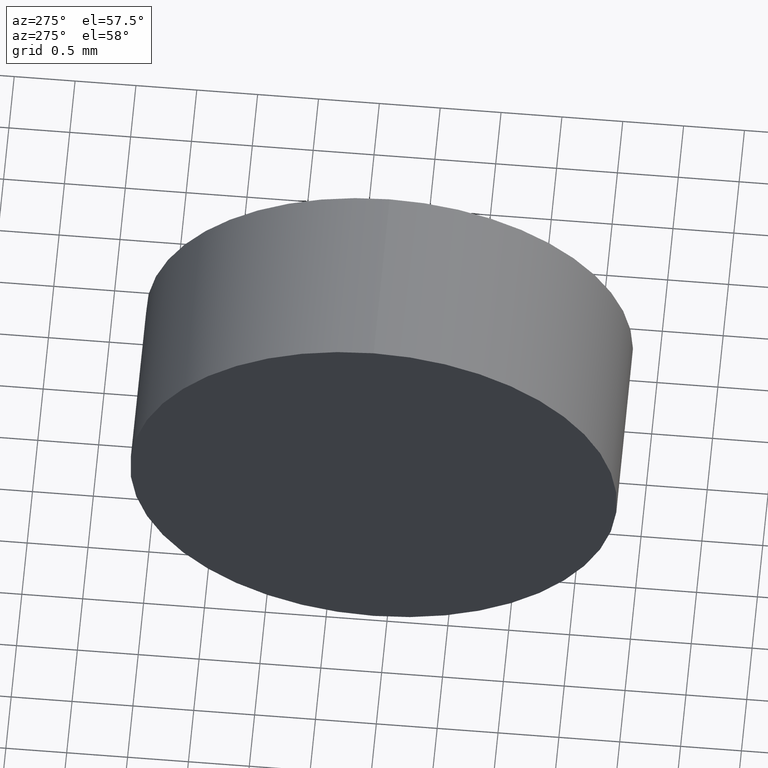
[diagram: clean part render]
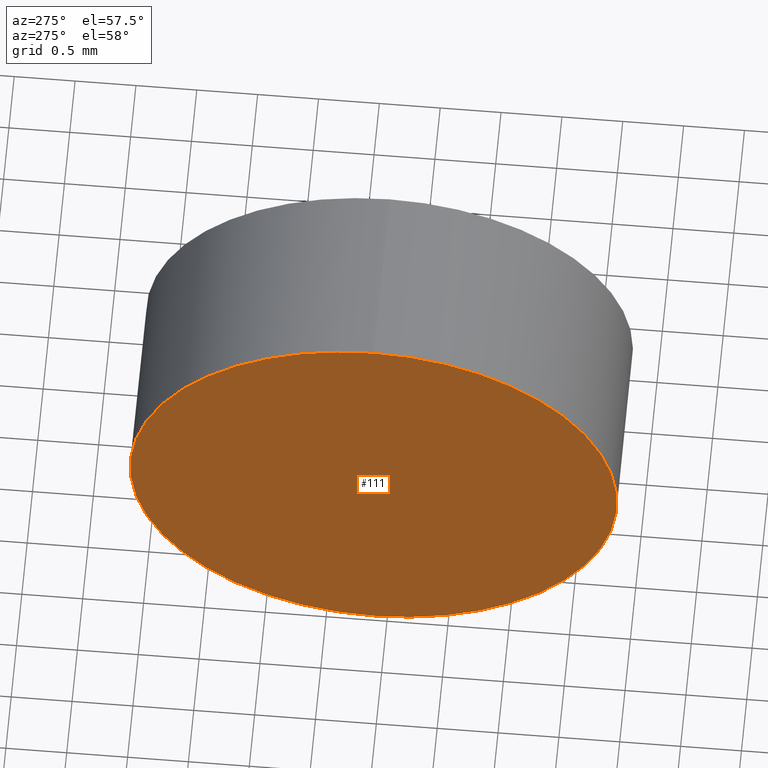
[diagram: same view with one face highlighted and labeled with its STEP entity id]
A machine part, auxiliary view. The second image highlights one B-rep face of the part: STEP entity #111.
In plain terms, the highlighted planar face has unit normal (1, 0, 0).
Its self-contained STEP definition (entity closure, byte-faithful):
#2 = ORIENTED_EDGE ( 'NONE', *, *, #46, .T. ) ;
#7 = EDGE_LOOP ( 'NONE', ( #161, #2 ) ) ;
#18 = VERTEX_POINT ( 'NONE', #152 ) ;
#32 = CARTESIAN_POINT ( 'NONE',  ( 416.9849177201196500, 167.1088649650342000, 2.000000000000001800 ) ) ;
#34 = CARTESIAN_POINT ( 'NONE',  ( 416.9849177201196500, 167.1088649650342000, 0.0000000000000000000 ) ) ;
#41 = AXIS2_PLACEMENT_3D ( 'NONE', #63, #168, #120 ) ;
#46 = EDGE_CURVE ( 'NONE', #18, #78, #137, .T. ) ;
#61 = FACE_OUTER_BOUND ( 'NONE', #7, .T. ) ;
#63 = CARTESIAN_POINT ( 'NONE',  ( 416.9849177201196500, 167.1088649650342000, 0.0000000000000000000 ) ) ;
#65 = DIRECTION ( 'NONE',  ( -1.000000000000000000, -0.0000000000000000000, -0.0000000000000000000 ) ) ;
#78 = VERTEX_POINT ( 'NONE', #32 ) ;
#79 = EDGE_CURVE ( 'NONE', #78, #18, #125, .T. ) ;
#90 = CARTESIAN_POINT ( 'NONE',  ( 416.9849177201196500, 167.1088649650342000, 0.0000000000000000000 ) ) ;
#93 = DIRECTION ( 'NONE',  ( 0.0000000000000000000, 0.0000000000000000000, 1.000000000000000000 ) ) ;
#110 = AXIS2_PLACEMENT_3D ( 'NONE', #90, #180, #153 ) ;
#111 = ADVANCED_FACE ( 'NONE', ( #61 ), #136, .F. ) ;
#120 = DIRECTION ( 'NONE',  ( 0.0000000000000000000, 0.0000000000000000000, -1.000000000000000000 ) ) ;
#125 = CIRCLE ( 'NONE', #174, 2.000000000000001800 ) ;
#136 = PLANE ( 'NONE',  #41 ) ;
#137 = CIRCLE ( 'NONE', #110, 2.000000000000001800 ) ;
#152 = CARTESIAN_POINT ( 'NONE',  ( 416.9849177201196500, 167.1088649650342000, -2.000000000000001800 ) ) ;
#153 = DIRECTION ( 'NONE',  ( 0.0000000000000000000, 0.0000000000000000000, 1.000000000000000000 ) ) ;
#161 = ORIENTED_EDGE ( 'NONE', *, *, #79, .T. ) ;
#168 = DIRECTION ( 'NONE',  ( 1.000000000000000000, 0.0000000000000000000, 0.0000000000000000000 ) ) ;
#174 = AXIS2_PLACEMENT_3D ( 'NONE', #34, #65, #93 ) ;
#180 = DIRECTION ( 'NONE',  ( -1.000000000000000000, -0.0000000000000000000, -0.0000000000000000000 ) ) ;